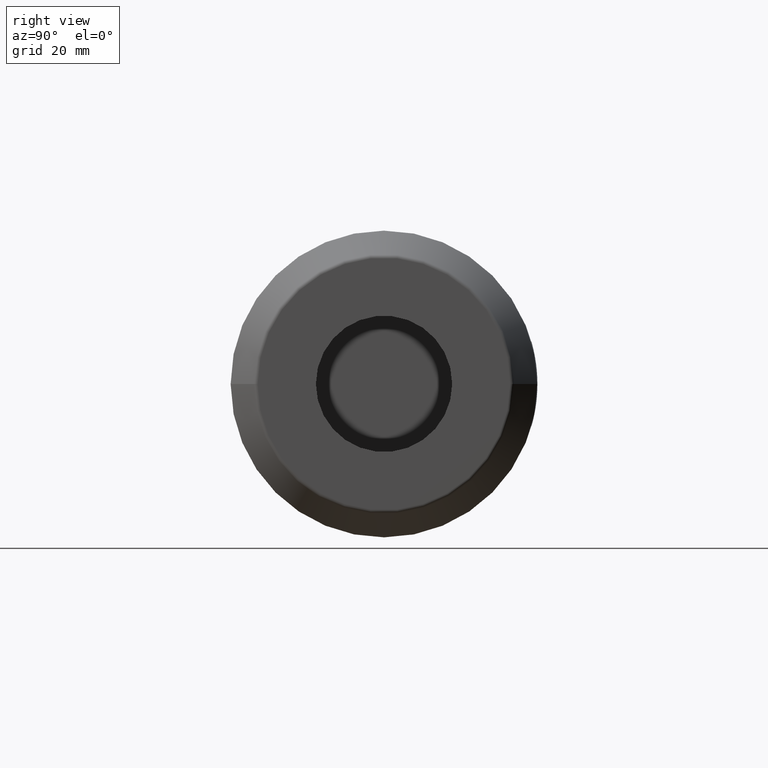
[diagram: clean part render]
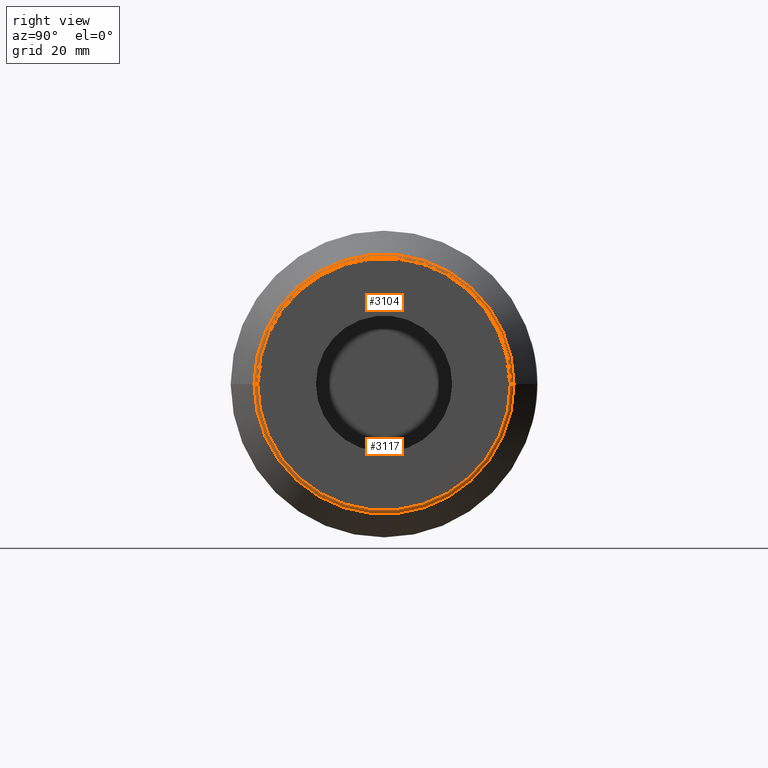
[diagram: same view with one multi-face feature highlighted, each face labeled with its STEP entity id]
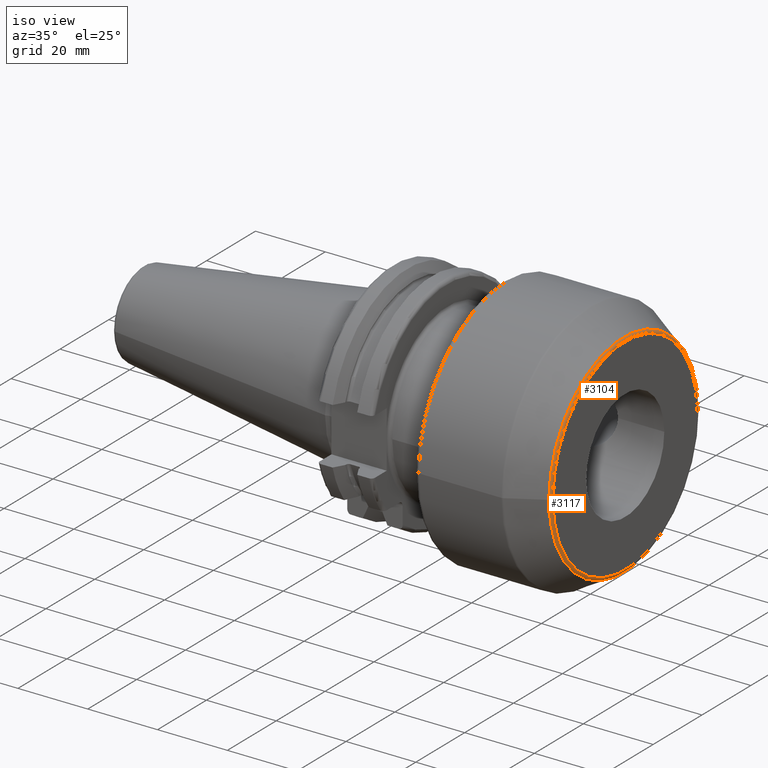
[diagram: same view with one multi-face feature highlighted, each face labeled with its STEP entity id]
A machine part, right view. The highlighted faces form ONE feature: a constant-radius fillet chain: 2 tangent blend faces with common blend radius 1 mm. The faces share edges in the B-rep.
A second angle (iso view) of the same feature is appended — it is thin or edge-on in the first view.
Their STEP definitions:
[1] entity #3104 (Torus):
#1297=CARTESIAN_POINT('',(6.95E1,0.E0,0.E0));
#1298=DIRECTION('',(-1.E0,0.E0,0.E0));
#1299=DIRECTION('',(0.E0,-1.E0,0.E0));
#1300=AXIS2_PLACEMENT_3D('',#1297,#1298,#1299);
#1302=CARTESIAN_POINT('',(6.9E1,-2.964914703891E1,-7.114864253310E-13));
#1303=DIRECTION('',(0.E0,-2.399642984319E-14,1.E0));
#1304=DIRECTION('',(5.E-1,-8.660254037844E-1,-2.078151784433E-14));
#1305=AXIS2_PLACEMENT_3D('',#1302,#1303,#1304);
#1307=CARTESIAN_POINT('',(6.9E1,2.964914703891E1,6.883105196920E-13));
#1308=DIRECTION('',(0.E0,2.321406955552E-14,-1.E0));
#1309=DIRECTION('',(5.E-1,8.660254037844E-1,2.010397396030E-14));
#1310=AXIS2_PLACEMENT_3D('',#1307,#1308,#1309);
#1327=CARTESIAN_POINT('',(7.E1,0.E0,0.E0));
#1328=DIRECTION('',(-1.E0,0.E0,0.E0));
#1329=DIRECTION('',(0.E0,-1.E0,0.E0));
#1330=AXIS2_PLACEMENT_3D('',#1327,#1328,#1329);
#1782=CARTESIAN_POINT('',(6.95E1,3.051517244270E1,0.E0));
#1783=CARTESIAN_POINT('',(6.95E1,-3.051517244270E1,0.E0));
#1784=VERTEX_POINT('',#1782);
#1785=VERTEX_POINT('',#1783);
#1786=CARTESIAN_POINT('',(7.E1,2.964914703891E1,-2.460308150490E-14));
#1787=CARTESIAN_POINT('',(7.E1,-2.964914703891E1,4.730584076552E-14));
#1788=VERTEX_POINT('',#1786);
#1789=VERTEX_POINT('',#1787);
#3090=CARTESIAN_POINT('',(6.9E1,0.E0,0.E0));
#3091=DIRECTION('',(1.E0,0.E0,0.E0));
#3092=DIRECTION('',(0.E0,-9.999900317227E-1,-4.465025774661E-3));
#3093=AXIS2_PLACEMENT_3D('',#3090,#3091,#3092);
#3094=TOROIDAL_SURFACE('',#3093,2.964914703891E1,1.E0);
#3095=ORIENTED_EDGE('',*,*,#3084,.T.);
#3097=ORIENTED_EDGE('',*,*,#3096,.T.);
#3099=ORIENTED_EDGE('',*,*,#3098,.F.);
#3101=ORIENTED_EDGE('',*,*,#3100,.F.);
#3102=EDGE_LOOP('',(#3095,#3097,#3099,#3101));
#3103=FACE_OUTER_BOUND('',#3102,.F.);
#3104=ADVANCED_FACE('',(#3103),#3094,.T.);
#1301=CIRCLE('',#1300,3.051517244270E1);
#1306=CIRCLE('',#1305,1.E0);
#1311=CIRCLE('',#1310,1.E0);
#1331=CIRCLE('',#1330,2.964914703891E1);
#3084=EDGE_CURVE('',#1785,#1784,#1301,.T.);
#3096=EDGE_CURVE('',#1784,#1788,#1311,.T.);
#3098=EDGE_CURVE('',#1789,#1788,#1331,.T.);
#3100=EDGE_CURVE('',#1785,#1789,#1306,.T.);
[2] entity #3117 (Torus):
#1283=CARTESIAN_POINT('',(6.95E1,0.E0,0.E0));
#1284=DIRECTION('',(-1.E0,0.E0,0.E0));
#1285=DIRECTION('',(0.E0,1.E0,0.E0));
#1286=AXIS2_PLACEMENT_3D('',#1283,#1284,#1285);
#1302=CARTESIAN_POINT('',(6.9E1,-2.964914703891E1,-7.114864253310E-13));
#1303=DIRECTION('',(0.E0,-2.399642984319E-14,1.E0));
#1304=DIRECTION('',(5.E-1,-8.660254037844E-1,-2.078151784433E-14));
#1305=AXIS2_PLACEMENT_3D('',#1302,#1303,#1304);
#1307=CARTESIAN_POINT('',(6.9E1,2.964914703891E1,6.883105196920E-13));
#1308=DIRECTION('',(0.E0,2.321406955552E-14,-1.E0));
#1309=DIRECTION('',(5.E-1,8.660254037844E-1,2.010397396030E-14));
#1310=AXIS2_PLACEMENT_3D('',#1307,#1308,#1309);
#1322=CARTESIAN_POINT('',(7.E1,0.E0,0.E0));
#1323=DIRECTION('',(-1.E0,0.E0,0.E0));
#1324=DIRECTION('',(0.E0,1.E0,0.E0));
#1325=AXIS2_PLACEMENT_3D('',#1322,#1323,#1324);
#1782=CARTESIAN_POINT('',(6.95E1,3.051517244270E1,0.E0));
#1783=CARTESIAN_POINT('',(6.95E1,-3.051517244270E1,0.E0));
#1784=VERTEX_POINT('',#1782);
#1785=VERTEX_POINT('',#1783);
#1786=CARTESIAN_POINT('',(7.E1,2.964914703891E1,-2.460308150490E-14));
#1787=CARTESIAN_POINT('',(7.E1,-2.964914703891E1,4.730584076552E-14));
#1788=VERTEX_POINT('',#1786);
#1789=VERTEX_POINT('',#1787);
#3105=CARTESIAN_POINT('',(6.9E1,0.E0,0.E0));
#3106=DIRECTION('',(1.E0,0.E0,0.E0));
#3107=DIRECTION('',(0.E0,9.999900317227E-1,4.465025774661E-3));
#3108=AXIS2_PLACEMENT_3D('',#3105,#3106,#3107);
#3109=TOROIDAL_SURFACE('',#3108,2.964914703891E1,1.E0);
#3110=ORIENTED_EDGE('',*,*,#3070,.T.);
#3111=ORIENTED_EDGE('',*,*,#3100,.T.);
#3113=ORIENTED_EDGE('',*,*,#3112,.F.);
#3114=ORIENTED_EDGE('',*,*,#3096,.F.);
#3115=EDGE_LOOP('',(#3110,#3111,#3113,#3114));
#3116=FACE_OUTER_BOUND('',#3115,.F.);
#3117=ADVANCED_FACE('',(#3116),#3109,.T.);
#1287=CIRCLE('',#1286,3.051517244270E1);
#1306=CIRCLE('',#1305,1.E0);
#1311=CIRCLE('',#1310,1.E0);
#1326=CIRCLE('',#1325,2.964914703891E1);
#3070=EDGE_CURVE('',#1784,#1785,#1287,.T.);
#3096=EDGE_CURVE('',#1784,#1788,#1311,.T.);
#3100=EDGE_CURVE('',#1785,#1789,#1306,.T.);
#3112=EDGE_CURVE('',#1788,#1789,#1326,.T.);